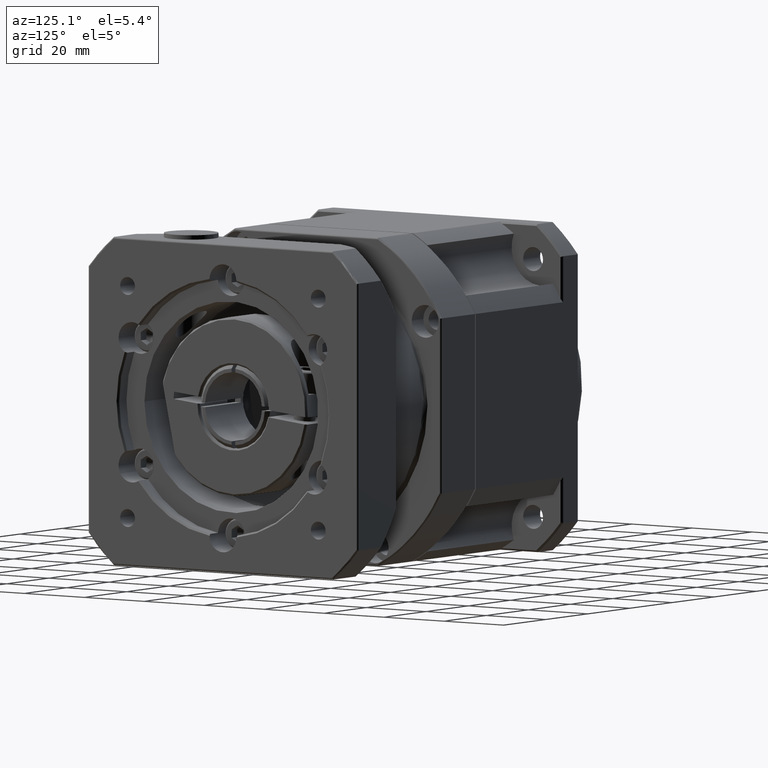
[diagram: clean part render]
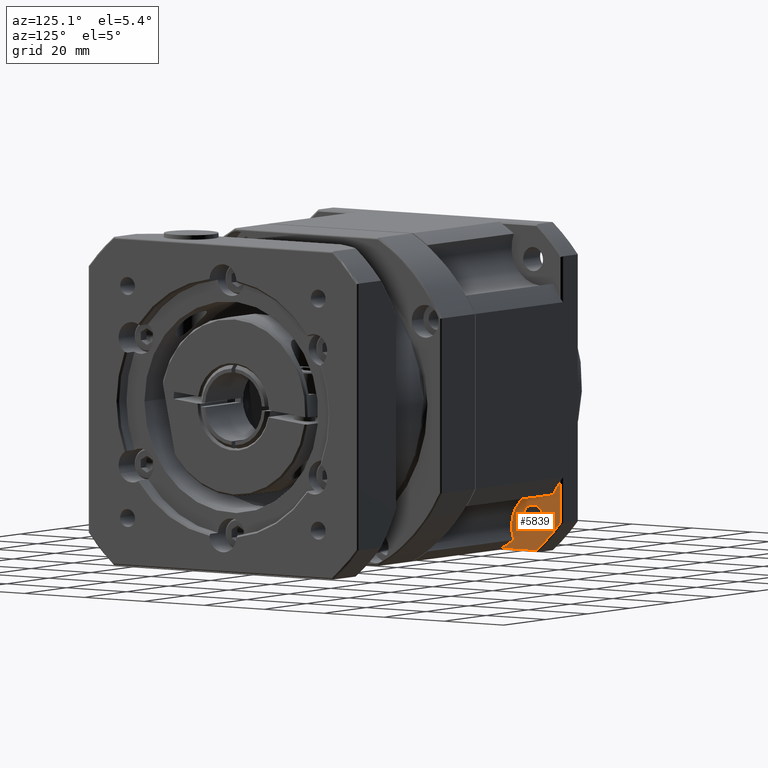
[diagram: same view with one face highlighted and labeled with its STEP entity id]
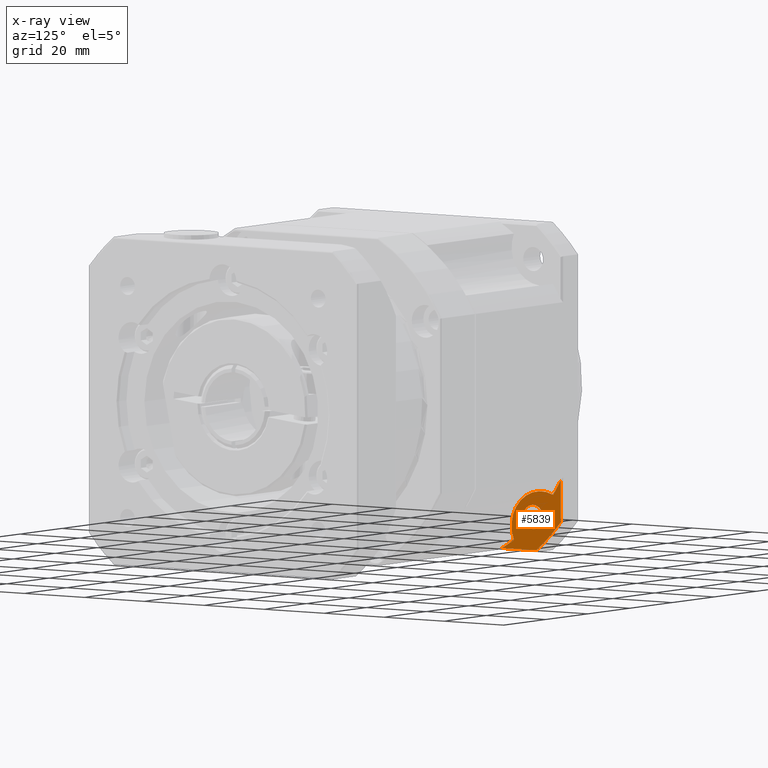
[diagram: x-ray of the same camera — body ghosted, the highlighted face saturated]
A machine part, auxiliary view. The second image highlights one B-rep face of the part: STEP entity #5839.
The next image is the same camera in x-ray: the body ghosted, the highlighted face saturated — about 0% of this face is hidden behind the body in this view.
In plain terms, the highlighted planar face has unit normal (1, 0, -0).
Its self-contained STEP definition (entity closure, byte-faithful):
#261=LINE('',#9979,#528);
#264=LINE('',#9995,#531);
#528=VECTOR('',#7721,11.4994279054643);
#531=VECTOR('',#7730,11.4994279054643);
#876=PLANE('',#6461);
#1080=FACE_BOUND('',#1860,.T.);
#1355=FACE_OUTER_BOUND('',#1859,.T.);
#1859=EDGE_LOOP('',(#4482,#4483,#4484,#4485,#4486,#4487));
#1860=EDGE_LOOP('',(#4488));
#2322=CIRCLE('',#6460,57.5);
#2323=CIRCLE('',#6462,51.);
#2324=CIRCLE('',#6463,10.);
#2325=CIRCLE('',#6464,51.);
#2326=CIRCLE('',#6465,3.3);
#2743=VERTEX_POINT('',#9977);
#2744=VERTEX_POINT('',#9978);
#2749=VERTEX_POINT('',#9992);
#2750=VERTEX_POINT('',#9994);
#2751=VERTEX_POINT('',#10004);
#2752=VERTEX_POINT('',#10006);
#2753=VERTEX_POINT('',#10009);
#3377=EDGE_CURVE('',#2743,#2744,#261,.T.);
#3383=EDGE_CURVE('',#2749,#2750,#264,.T.);
#3386=EDGE_CURVE('',#2750,#2743,#2322,.T.);
#3387=EDGE_CURVE('',#2751,#2749,#2323,.T.);
#3388=EDGE_CURVE('',#2752,#2751,#2324,.T.);
#3389=EDGE_CURVE('',#2744,#2752,#2325,.T.);
#3390=EDGE_CURVE('',#2753,#2753,#2326,.T.);
#4482=ORIENTED_EDGE('',*,*,#3377,.F.);
#4483=ORIENTED_EDGE('',*,*,#3386,.F.);
#4484=ORIENTED_EDGE('',*,*,#3383,.F.);
#4485=ORIENTED_EDGE('',*,*,#3387,.F.);
#4486=ORIENTED_EDGE('',*,*,#3388,.F.);
#4487=ORIENTED_EDGE('',*,*,#3389,.F.);
#4488=ORIENTED_EDGE('',*,*,#3390,.T.);
#5839=ADVANCED_FACE('',(#1355,#1080),#876,.T.);
#6460=AXIS2_PLACEMENT_3D('',#10002,#7735,#7736);
#6461=AXIS2_PLACEMENT_3D('',#10003,#7737,#7738);
#6462=AXIS2_PLACEMENT_3D('',#10005,#7739,#7740);
#6463=AXIS2_PLACEMENT_3D('',#10007,#7741,#7742);
#6464=AXIS2_PLACEMENT_3D('',#10008,#7743,#7744);
#6465=AXIS2_PLACEMENT_3D('',#10010,#7745,#7746);
#7721=DIRECTION('',(6.10622663543786E-16,-1.,-1.39086273362758E-15));
#7730=DIRECTION('',(-4.82820056512866E-15,1.58823571578316E-15,-1.));
#7735=DIRECTION('center_axis',(-1.,-6.10622663543793E-16,4.82820056512866E-15));
#7736=DIRECTION('ref_axis',(-4.82820056512866E-15,1.19348975147199E-15,
-1.));
#7737=DIRECTION('center_axis',(1.,6.10622663543793E-16,-4.82820056512866E-15));
#7738=DIRECTION('ref_axis',(-4.9737991503207E-15,1.4210854715202E-15,-1.));
#7739=DIRECTION('center_axis',(1.,6.10622663543793E-16,-4.82820056512866E-15));
#7740=DIRECTION('ref_axis',(4.82820056512866E-15,-1.19348975147199E-15,
1.));
#7741=DIRECTION('center_axis',(-1.,-6.10622663543793E-16,4.82820056512866E-15));
#7742=DIRECTION('ref_axis',(-4.82820056512866E-15,1.07102507155726E-15,
-1.));
#7743=DIRECTION('center_axis',(1.,6.10622663543793E-16,-4.82820056512866E-15));
#7744=DIRECTION('ref_axis',(4.82820056512866E-15,-1.19348975147199E-15,
1.));
#7745=DIRECTION('center_axis',(-1.,-6.10622663543793E-16,4.82820056512866E-15));
#7746=DIRECTION('ref_axis',(4.82820056512866E-15,-1.07102507155726E-15,
1.));
#9977=CARTESIAN_POINT('',(-52.0297103443184,4.0209553331416,-33.6496122451687));
#9978=CARTESIAN_POINT('',(-52.0297103443184,-7.47847257232269,-33.6496122451687));
#9979=CARTESIAN_POINT('',(-52.0297103443184,-9.89332757892465,-33.6496122451687));
#9992=CARTESIAN_POINT('',(-52.0297103443183,12.1066724210753,-14.0644672517707));
#9994=CARTESIAN_POINT('',(-52.0297103443184,12.1066724210753,-25.5638951572349));
#9995=CARTESIAN_POINT('',(-52.0297103443181,12.1066724210752,33.3503877548313));
#10002=CARTESIAN_POINT('Origin',(-52.0297103443182,-32.3933275789247,10.8503877548313));
#10003=CARTESIAN_POINT('Origin',(-52.0297103443182,-32.3933275789247,10.8503877548313));
#10004=CARTESIAN_POINT('',(-52.0297103443184,9.60150351862406,-18.0880669566483));
#10005=CARTESIAN_POINT('Origin',(-52.0297103443182,-32.3933275789247,10.8503877548313));
#10006=CARTESIAN_POINT('',(-52.0297103443184,-3.45487286744508,-31.1444433427174));
#10007=CARTESIAN_POINT('Origin',(-52.0297103443184,5.79043860514891,-27.3333784292423));
#10008=CARTESIAN_POINT('Origin',(-52.0297103443182,-32.3933275789247,10.8503877548313));
#10009=CARTESIAN_POINT('',(-52.0297103443184,2.96201148040272,-27.8049513044961));
#10010=CARTESIAN_POINT('Origin',(-52.0297103443184,2.96201148040273,-24.5049513044961));